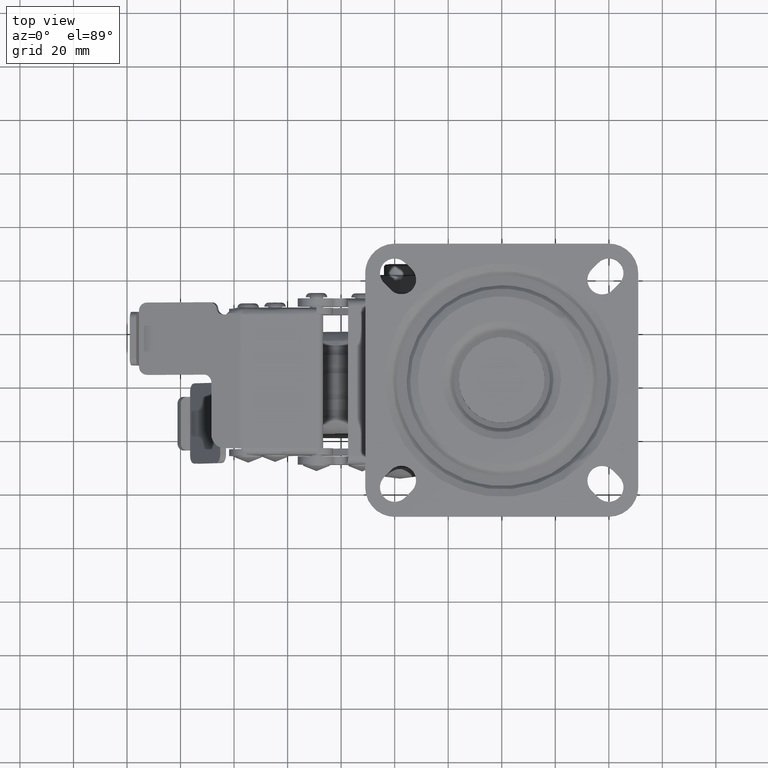
[diagram: clean part render]
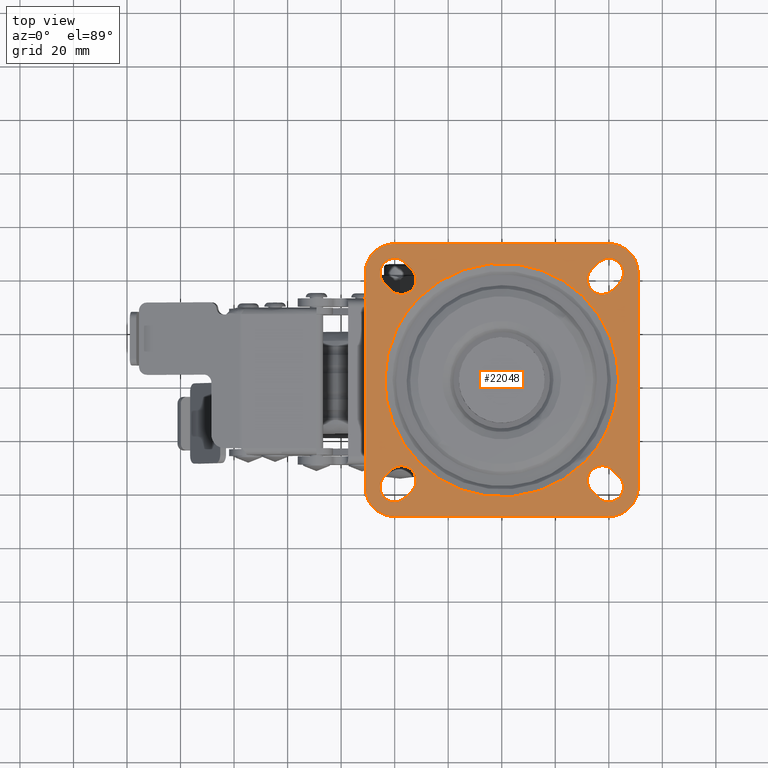
[diagram: same view with one face highlighted and labeled with its STEP entity id]
A machine part, top view. The second image highlights one B-rep face of the part: STEP entity #22048.
In plain terms, the highlighted face is a freeform B-spline surface patch.
Its self-contained STEP definition (entity closure, byte-faithful):
#21577=CARTESIAN_POINT('',(-31.063409349253181,30.675487315989809,-7.218513E-016));
#21578=VERTEX_POINT('',#21577);
#21592=CARTESIAN_POINT('',(-43.656854249492397,0.0,0.0));
#21593=VERTEX_POINT('',#21592);
#21594=CARTESIAN_POINT('',(-43.656854249492397,0.0,0.0));
#21595=CARTESIAN_POINT('',(-43.656854247501144,17.922785791165079,-3.609256E-016));
#21596=CARTESIAN_POINT('',(-31.063409349253178,30.675487315989812,-7.218513E-016));
#21604=(BOUNDED_CURVE()B_SPLINE_CURVE(2,(#21594,#21595,#21596),.UNSPECIFIED.,.F.,.U.)B_SPLINE_CURVE_WITH_KNOTS((3,3),(0.0,0.124051937432048),.UNSPECIFIED.)CURVE()GEOMETRIC_REPRESENTATION_ITEM()RATIONAL_B_SPLINE_CURVE((1.0,0.854664114981930,0.853561814883004))REPRESENTATION_ITEM(''));
#21605=EDGE_CURVE('',#21593,#21578,#21604,.T.);
#21607=CARTESIAN_POINT('',(31.063409349253192,-30.675487315989809,-7.218513E-016));
#21608=VERTEX_POINT('',#21607);
#21609=CARTESIAN_POINT('',(31.063409349253185,-30.675487315989809,-7.218513E-016));
#21610=CARTESIAN_POINT('',(18.244154640137044,-43.656854245896973,-6.599297E-016));
#21611=CARTESIAN_POINT('',(-2.808738E-009,-43.656854246718723,-5.090992E-016));
#21612=CARTESIAN_POINT('',(-43.656854250309891,-43.656854248685129,-1.481736E-016));
#21613=CARTESIAN_POINT('',(-43.656854249492397,0.0,0.0));
#21621=(BOUNDED_CURVE()B_SPLINE_CURVE(2,(#21609,#21610,#21611,#21612,#21613),.UNSPECIFIED.,.F.,.U.)B_SPLINE_CURVE_WITH_KNOTS((3,2,3),(0.624051937432048,0.750000000000000,1.0),.UNSPECIFIED.)CURVE()GEOMETRIC_REPRESENTATION_ITEM()RATIONAL_B_SPLINE_CURVE((0.853561814883003,0.852442666204618,1.0,0.707106781186547,1.0))REPRESENTATION_ITEM(''));
#21622=EDGE_CURVE('',#21608,#21593,#21621,.T.);
#21671=CARTESIAN_POINT('',(43.656854249492397,0.0,0.0));
#21672=VERTEX_POINT('',#21671);
#21673=CARTESIAN_POINT('',(43.656854249492397,0.0,0.0));
#21674=CARTESIAN_POINT('',(43.656854247501144,-17.922785791165069,-3.609256E-016));
#21675=CARTESIAN_POINT('',(31.063409349253185,-30.675487315989809,-7.218513E-016));
#21683=(BOUNDED_CURVE()B_SPLINE_CURVE(2,(#21673,#21674,#21675),.UNSPECIFIED.,.F.,.U.)B_SPLINE_CURVE_WITH_KNOTS((3,3),(0.500000000000000,0.624051937432048),.UNSPECIFIED.)CURVE()GEOMETRIC_REPRESENTATION_ITEM()RATIONAL_B_SPLINE_CURVE((1.0,0.854664114981930,0.853561814883003))REPRESENTATION_ITEM(''));
#21684=EDGE_CURVE('',#21672,#21608,#21683,.T.);
#21686=CARTESIAN_POINT('',(-31.063409349253178,30.675487315989812,-7.218513E-016));
#21687=CARTESIAN_POINT('',(-18.244154640137040,43.656854245896973,-6.599297E-016));
#21688=CARTESIAN_POINT('',(2.808743E-009,43.656854246718730,-5.090992E-016));
#21689=CARTESIAN_POINT('',(43.656854250309891,43.656854248685129,-1.481736E-016));
#21690=CARTESIAN_POINT('',(43.656854249492397,0.0,0.0));
#21698=(BOUNDED_CURVE()B_SPLINE_CURVE(2,(#21686,#21687,#21688,#21689,#21690),.UNSPECIFIED.,.F.,.U.)B_SPLINE_CURVE_WITH_KNOTS((3,2,3),(0.124051937432048,0.250000000000000,0.500000000000000),.UNSPECIFIED.)CURVE()GEOMETRIC_REPRESENTATION_ITEM()RATIONAL_B_SPLINE_CURVE((0.853561814883004,0.852442666204618,1.0,0.707106781186547,1.0))REPRESENTATION_ITEM(''));
#21699=EDGE_CURVE('',#21578,#21672,#21698,.T.);
#21707=CARTESIAN_POINT('',(-56.094879104004477,56.094899802304212,0.0));
#21708=CARTESIAN_POINT('',(56.094885839856367,56.094899802304212,0.0));
#21709=CARTESIAN_POINT('',(-56.094879104004477,-56.094902538157413,0.0));
#21710=CARTESIAN_POINT('',(56.094885839856367,-56.094902538157413,0.0));
#21711=B_SPLINE_SURFACE_WITH_KNOTS('',1,1,((#21707,#21709),(#21708,#21710)),.UNSPECIFIED.,.F.,.F.,.U.,(2,2),(2,2),(0.0,112.189764943860890),(0.0,112.189802340461600),.UNSPECIFIED.);
#21712=CARTESIAN_POINT('',(39.999977896509812,50.999999999997698,0.0));
#21713=VERTEX_POINT('',#21712);
#21714=CARTESIAN_POINT('',(-39.999977544248303,51.0,0.0));
#21715=VERTEX_POINT('',#21714);
#21716=CARTESIAN_POINT('',(39.999977896509812,50.999999999997698,0.0));
#21717=CARTESIAN_POINT('',(-39.999977544248303,51.0,0.0));
#21718=QUASI_UNIFORM_CURVE('',1,(#21716,#21717),.UNSPECIFIED.,.F.,.U.);
#21719=EDGE_CURVE('',#21713,#21715,#21718,.T.);
#21720=ORIENTED_EDGE('',*,*,#21719,.T.);
#21721=CARTESIAN_POINT('',(-50.999980999998101,40.000006911503853,0.0));
#21722=VERTEX_POINT('',#21721);
#21723=CARTESIAN_POINT('',(-39.999977544248303,51.0,0.0));
#21724=CARTESIAN_POINT('',(-50.999974088496387,51.000003455750331,0.0));
#21725=CARTESIAN_POINT('',(-50.999980999998073,40.000006911503853,0.0));
#21733=(BOUNDED_CURVE()B_SPLINE_CURVE(2,(#21723,#21724,#21725),.UNSPECIFIED.,.F.,.U.)CURVE()GEOMETRIC_REPRESENTATION_ITEM()QUASI_UNIFORM_CURVE()RATIONAL_B_SPLINE_CURVE((1.0,0.707106892258612,1.0))REPRESENTATION_ITEM(''));
#21734=EDGE_CURVE('',#21715,#21722,#21733,.T.);
#21735=ORIENTED_EDGE('',*,*,#21734,.T.);
#21736=CARTESIAN_POINT('',(-50.999981000000197,-40.0,0.0));
#21737=VERTEX_POINT('',#21736);
#21738=CARTESIAN_POINT('',(-50.999980999998101,40.000006911503853,0.0));
#21739=CARTESIAN_POINT('',(-50.999981000000197,-40.0,0.0));
#21740=QUASI_UNIFORM_CURVE('',1,(#21738,#21739),.UNSPECIFIED.,.F.,.U.);
#21741=EDGE_CURVE('',#21722,#21737,#21740,.T.);
#21742=ORIENTED_EDGE('',*,*,#21741,.T.);
#21743=CARTESIAN_POINT('',(-39.999977544248303,-51.0,0.0));
#21744=VERTEX_POINT('',#21743);
#21745=CARTESIAN_POINT('',(-50.999981000000197,-40.0,0.0));
#21746=CARTESIAN_POINT('',(-51.000222283097550,-40.899945725324358,0.0));
#21747=CARTESIAN_POINT('',(-50.805575199807890,-42.474718151389602,0.0));
#21748=CARTESIAN_POINT('',(-50.042552149644422,-44.649335092191620,0.0));
#21749=CARTESIAN_POINT('',(-49.109036625719646,-46.250919974150463,0.0));
#21750=CARTESIAN_POINT('',(-47.936464380849742,-47.679713613750863,0.0));
#21751=CARTESIAN_POINT('',(-46.791792951633020,-48.704449546195718,0.0));
#21752=CARTESIAN_POINT('',(-45.324466430768823,-49.671910986149989,0.0));
#21753=CARTESIAN_POINT('',(-43.972564422038140,-50.301209903341771,0.0));
#21754=CARTESIAN_POINT('',(-42.114730341513457,-50.852334019088232,0.0));
#21755=CARTESIAN_POINT('',(-40.854935114498382,-51.000185220972320,0.0));
#21756=CARTESIAN_POINT('',(-39.999977544248303,-51.0,0.0));
#21757=B_SPLINE_CURVE_WITH_KNOTS('',3,(#21745,#21746,#21747,#21748,#21749,#21750,#21751,#21752,#21753,#21754,#21755,#21756),.UNSPECIFIED.,.F.,.U.,(4,1,1,1,1,1,1,1,1,4),(0.000000224836338,2.699790799089776,4.724698061610376,6.884578377203805,8.234497033268264,10.259280324058610,11.474220118097451,13.499127087133481,14.714058011706060,17.278871467454621),.UNSPECIFIED.);
#21758=EDGE_CURVE('',#21737,#21744,#21757,.T.);
#21759=ORIENTED_EDGE('',*,*,#21758,.T.);
#21760=CARTESIAN_POINT('',(39.999984999999803,-51.0,0.0));
#21761=VERTEX_POINT('',#21760);
#21762=CARTESIAN_POINT('',(-39.999977544248303,-51.0,0.0));
#21763=CARTESIAN_POINT('',(39.999984999999803,-51.0,0.0));
#21764=QUASI_UNIFORM_CURVE('',1,(#21762,#21763),.UNSPECIFIED.,.F.,.U.);
#21765=EDGE_CURVE('',#21744,#21761,#21764,.T.);
#21766=ORIENTED_EDGE('',*,*,#21765,.T.);
#21767=CARTESIAN_POINT('',(50.999984999999803,-40.0,0.0));
#21768=VERTEX_POINT('',#21767);
#21769=CARTESIAN_POINT('',(39.999984999999803,-51.000000000000007,0.0));
#21770=CARTESIAN_POINT('',(50.999984999999803,-51.000000000000007,0.0));
#21771=CARTESIAN_POINT('',(50.999984999999803,-40.0,0.0));
#21779=(BOUNDED_CURVE()B_SPLINE_CURVE(2,(#21769,#21770,#21771),.UNSPECIFIED.,.F.,.U.)CURVE()GEOMETRIC_REPRESENTATION_ITEM()QUASI_UNIFORM_CURVE()RATIONAL_B_SPLINE_CURVE((1.0,0.707106781186548,1.0))REPRESENTATION_ITEM(''));
#21780=EDGE_CURVE('',#21761,#21768,#21779,.T.);
#21781=ORIENTED_EDGE('',*,*,#21780,.T.);
#21782=CARTESIAN_POINT('',(50.999984999999803,40.0,0.0));
#21783=VERTEX_POINT('',#21782);
#21784=CARTESIAN_POINT('',(50.999984999999803,-40.0,0.0));
#21785=CARTESIAN_POINT('',(50.999984999999803,40.0,0.0));
#21786=QUASI_UNIFORM_CURVE('',1,(#21784,#21785),.UNSPECIFIED.,.F.,.U.);
#21787=EDGE_CURVE('',#21768,#21783,#21786,.T.);
#21788=ORIENTED_EDGE('',*,*,#21787,.T.);
#21789=CARTESIAN_POINT('',(50.999984999999803,40.0,0.0));
#21790=CARTESIAN_POINT('',(51.000648237628717,41.215006757699797,0.0));
#21791=CARTESIAN_POINT('',(50.691258662750997,43.059388279457757,0.0));
#21792=CARTESIAN_POINT('',(49.757392061581427,45.165005271869369,0.0));
#21793=CARTESIAN_POINT('',(48.840936224159371,46.612288081897312,0.0));
#21794=CARTESIAN_POINT('',(47.454758877050402,48.219918921650567,0.0));
#21795=CARTESIAN_POINT('',(45.438023111143963,49.696496231385893,0.0));
#21796=CARTESIAN_POINT('',(42.789626357614303,50.755314612313917,0.0));
#21797=CARTESIAN_POINT('',(40.989927893486623,51.000340705575447,0.0));
#21798=CARTESIAN_POINT('',(39.999977896509812,50.999999999997698,0.0));
#21799=B_SPLINE_CURVE_WITH_KNOTS('',3,(#21789,#21790,#21791,#21792,#21793,#21794,#21795,#21796,#21797,#21798),.UNSPECIFIED.,.F.,.U.,(4,1,1,1,1,1,1,4),(0.000000224885348,3.644753966738692,5.534648713491839,6.884579830683672,8.774361402920590,11.879204614591190,14.309086279871201,17.278875115261108),.UNSPECIFIED.);
#21800=EDGE_CURVE('',#21783,#21713,#21799,.T.);
#21801=ORIENTED_EDGE('',*,*,#21800,.T.);
#21802=EDGE_LOOP('',(#21720,#21735,#21742,#21759,#21766,#21781,#21788,#21801));
#21803=FACE_OUTER_BOUND('',#21802,.T.);
#21804=CARTESIAN_POINT('',(-33.597049696237399,41.375174696237600,0.0));
#21805=VERTEX_POINT('',#21804);
#21806=CARTESIAN_POINT('',(-36.124825303777712,43.902950303777700,0.0));
#21807=VERTEX_POINT('',#21806);
#21808=CARTESIAN_POINT('',(-33.597049696237399,41.375174696237600,0.0));
#21809=CARTESIAN_POINT('',(-36.124825303777712,43.902950303777700,0.0));
#21810=QUASI_UNIFORM_CURVE('',1,(#21808,#21809),.UNSPECIFIED.,.F.,.U.);
#21811=EDGE_CURVE('',#21805,#21807,#21810,.T.);
#21812=ORIENTED_EDGE('',*,*,#21811,.F.);
#21813=CARTESIAN_POINT('',(-41.389091296521151,33.610916703473400,0.0));
#21814=VERTEX_POINT('',#21813);
#21815=CARTESIAN_POINT('',(-41.389091296521151,33.610916703473400,0.0));
#21816=CARTESIAN_POINT('',(-40.881012083288340,33.101853359468947,0.0));
#21817=CARTESIAN_POINT('',(-39.966456678701419,32.491764457795163,0.0));
#21818=CARTESIAN_POINT('',(-38.583546349464250,32.071767840767542,0.0));
#21819=CARTESIAN_POINT('',(-37.370086710992233,31.951123686344030,0.0));
#21820=CARTESIAN_POINT('',(-36.156448661664427,32.114658983542519,0.0));
#21821=CARTESIAN_POINT('',(-35.102530903386103,32.519819826728337,0.0));
#21822=CARTESIAN_POINT('',(-34.096520689594648,33.120552521888662,0.0));
#21823=CARTESIAN_POINT('',(-33.239585271481879,33.933451722766378,0.0));
#21824=CARTESIAN_POINT('',(-32.609601120048417,34.924362505454170,0.0));
#21825=CARTESIAN_POINT('',(-32.228077507574582,35.839519042625653,0.0));
#21826=CARTESIAN_POINT('',(-31.977852431651119,36.940581000396762,0.0));
#21827=CARTESIAN_POINT('',(-31.989629309521391,38.165117578244100,0.0));
#21828=CARTESIAN_POINT('',(-32.304140702884283,39.436596430264082,0.0));
#21829=CARTESIAN_POINT('',(-32.830175435149329,40.489901814828983,0.0));
#21830=CARTESIAN_POINT('',(-33.343711653154052,41.120068837926141,0.0));
#21831=CARTESIAN_POINT('',(-33.597049696237399,41.375174696237600,0.0));
#21832=B_SPLINE_CURVE_WITH_KNOTS('',3,(#21815,#21816,#21817,#21818,#21819,#21820,#21821,#21822,#21823,#21824,#21825,#21826,#21827,#21828,#21829,#21830,#21831),.UNSPECIFIED.,.F.,.U.,(4,1,1,1,1,1,1,1,1,1,1,1,1,1,4),(0.000000833654131,2.157359923557767,3.236147979732124,4.314895291188888,5.798197618687473,6.876941063922464,7.686021063745933,9.303865193162650,10.382603189910901,11.191689396623239,12.270458646412219,13.753747352168380,14.832490360555671,16.180944407251591,17.259557008159529),.UNSPECIFIED.);
#21833=EDGE_CURVE('',#21814,#21805,#21832,.T.);
#21834=ORIENTED_EDGE('',*,*,#21833,.F.);
#21835=CARTESIAN_POINT('',(-43.889092183694203,36.110917590648299,0.0));
#21836=VERTEX_POINT('',#21835);
#21837=CARTESIAN_POINT('',(-43.889092183694203,36.110917590648299,0.0));
#21838=CARTESIAN_POINT('',(-41.389091296521151,33.610916703473400,0.0));
#21839=QUASI_UNIFORM_CURVE('',1,(#21837,#21838),.UNSPECIFIED.,.F.,.U.);
#21840=EDGE_CURVE('',#21836,#21814,#21839,.T.);
#21841=ORIENTED_EDGE('',*,*,#21840,.F.);
#21842=CARTESIAN_POINT('',(-36.124825303777712,43.902950303777700,0.0));
#21843=CARTESIAN_POINT('',(-36.443690878201849,44.219655869245393,0.0));
#21844=CARTESIAN_POINT('',(-37.231202272957688,44.829929156837650,0.0));
#21845=CARTESIAN_POINT('',(-38.492012503903112,45.347611916965207,0.0));
#21846=CARTESIAN_POINT('',(-39.698824073133977,45.522900783785722,0.0));
#21847=CARTESIAN_POINT('',(-40.735606435209782,45.481993439761418,0.0));
#21848=CARTESIAN_POINT('',(-41.748578731831010,45.251953764299593,0.0));
#21849=CARTESIAN_POINT('',(-42.738530636592117,44.810506123178961,0.0));
#21850=CARTESIAN_POINT('',(-43.623410065461741,44.184645819731500,0.0));
#21851=CARTESIAN_POINT('',(-44.369366867804636,43.398385664802767,0.0));
#21852=CARTESIAN_POINT('',(-44.947798422380757,42.481804375463717,0.0));
#21853=CARTESIAN_POINT('',(-45.401644470492009,41.301403044569753,0.0));
#21854=CARTESIAN_POINT('',(-45.561503503790092,39.993554134116387,0.0));
#21855=CARTESIAN_POINT('',(-45.383896368138473,38.694195330792340,0.0));
#21856=CARTESIAN_POINT('',(-44.911636707664002,37.376190686496159,0.0));
#21857=CARTESIAN_POINT('',(-44.334386623203002,36.555573090661802,0.0));
#21858=CARTESIAN_POINT('',(-43.889092183694203,36.110917590648299,0.0));
#21859=B_SPLINE_CURVE_WITH_KNOTS('',3,(#21842,#21843,#21844,#21845,#21846,#21847,#21848,#21849,#21850,#21851,#21852,#21853,#21854,#21855,#21856,#21857,#21858),.UNSPECIFIED.,.F.,.U.,(4,1,1,1,1,1,1,1,1,1,1,1,1,1,4),(0.000000833674289,1.348309929754549,2.966445828196024,4.045207959858201,4.989121430203648,6.067879107188098,7.146627150325449,8.225366673103656,9.303858417873009,10.382595628962729,11.461383189221269,13.079507136625690,14.293113033837519,15.371848893313899,17.259544438839871),.UNSPECIFIED.);
#21860=EDGE_CURVE('',#21807,#21836,#21859,.T.);
#21861=ORIENTED_EDGE('',*,*,#21860,.F.);
#21862=EDGE_LOOP('',(#21812,#21834,#21841,#21861));
#21863=FACE_BOUND('',#21862,.T.);
#21864=CARTESIAN_POINT('',(36.110900999999799,-43.889082000000052,0.0));
#21865=VERTEX_POINT('',#21864);
#21866=CARTESIAN_POINT('',(43.899431855316500,-36.121284851172902,0.0));
#21867=VERTEX_POINT('',#21866);
#21868=CARTESIAN_POINT('',(36.110900999999799,-43.889082000000052,0.0));
#21869=CARTESIAN_POINT('',(36.365183695854469,-44.143409375344142,0.0));
#21870=CARTESIAN_POINT('',(36.993705441940747,-44.659304591637067,0.0));
#21871=CARTESIAN_POINT('',(38.207280195131439,-45.270845123756082,0.0));
#21872=CARTESIAN_POINT('',(39.588984224604062,-45.546385896674408,0.0));
#21873=CARTESIAN_POINT('',(40.808092061369322,-45.472131296245678,0.0));
#21874=CARTESIAN_POINT('',(41.814114636601772,-45.221065191556640,0.0));
#21875=CARTESIAN_POINT('',(42.805795440274707,-44.782762159117517,0.0));
#21876=CARTESIAN_POINT('',(43.752563644063009,-44.082383952252492,0.0));
#21877=CARTESIAN_POINT('',(44.461756998051953,-43.262362423196343,0.0));
#21878=CARTESIAN_POINT('',(44.972959763837032,-42.412523452994542,0.0));
#21879=CARTESIAN_POINT('',(45.299576349005832,-41.570085834272803,0.0));
#21880=CARTESIAN_POINT('',(45.494827084267477,-40.597678498249522,0.0));
#21881=CARTESIAN_POINT('',(45.524926212184077,-39.468647608419637,0.0));
#21882=CARTESIAN_POINT('',(45.273837604754547,-38.269680300480729,0.0));
#21883=CARTESIAN_POINT('',(44.716356805647187,-37.084103482293607,0.0));
#21884=CARTESIAN_POINT('',(44.216554685901599,-36.439937494415183,0.0));
#21885=CARTESIAN_POINT('',(43.899431855316500,-36.121284851172902,0.0));
#21886=B_SPLINE_CURVE_WITH_KNOTS('',3,(#21868,#21869,#21870,#21871,#21872,#21873,#21874,#21875,#21876,#21877,#21878,#21879,#21880,#21881,#21882,#21883,#21884,#21885),.UNSPECIFIED.,.F.,.U.,(4,1,1,1,1,1,1,1,1,1,1,1,1,1,1,4),(0.000000835150178,1.078954720710598,2.427752097211130,4.046378912638533,5.260336634813093,6.069635563945541,7.148695849053567,8.497448488899186,9.576305938086636,10.385600954814590,11.464700798025831,12.274001594235401,13.353063624251350,14.836773036444059,15.915840433762099,17.264540487672441),.UNSPECIFIED.);
#21887=EDGE_CURVE('',#21865,#21867,#21886,.T.);
#21888=ORIENTED_EDGE('',*,*,#21887,.F.);
#21889=CARTESIAN_POINT('',(33.610898926999553,-41.389078926999453,0.0));
#21890=VERTEX_POINT('',#21889);
#21891=CARTESIAN_POINT('',(36.110900999999799,-43.889082000000052,0.0));
#21892=CARTESIAN_POINT('',(33.610898926999553,-41.389078926999453,0.0));
#21893=QUASI_UNIFORM_CURVE('',1,(#21891,#21892),.UNSPECIFIED.,.F.,.U.);
#21894=EDGE_CURVE('',#21865,#21890,#21893,.T.);
#21895=ORIENTED_EDGE('',*,*,#21894,.T.);
#21896=CARTESIAN_POINT('',(41.378527047411552,-33.600381051628602,0.0));
#21897=VERTEX_POINT('',#21896);
#21898=CARTESIAN_POINT('',(41.378527047411552,-33.600381051628602,0.0));
#21899=CARTESIAN_POINT('',(40.868996375904622,-33.092446907898193,0.0));
#21900=CARTESIAN_POINT('',(39.952367153560459,-32.484964443952272,0.0));
#21901=CARTESIAN_POINT('',(38.481440251623802,-32.042506140334282,0.0));
#21902=CARTESIAN_POINT('',(37.351899253489087,-31.961573145281079,0.0));
#21903=CARTESIAN_POINT('',(36.234339179488842,-32.115644167740861,0.0));
#21904=CARTESIAN_POINT('',(35.076673332258032,-32.500043262995938,0.0));
#21905=CARTESIAN_POINT('',(34.002815823185763,-33.182537362616898,0.0));
#21906=CARTESIAN_POINT('',(33.131953563819430,-34.099879610464797,0.0));
#21907=CARTESIAN_POINT('',(32.552980055956347,-35.016468284975822,0.0));
#21908=CARTESIAN_POINT('',(32.196225622960100,-35.944115360437650,0.0));
#21909=CARTESIAN_POINT('',(31.994798104027680,-36.961238909245473,0.0));
#21910=CARTESIAN_POINT('',(31.980444573806601,-38.182486639584432,0.0));
#21911=CARTESIAN_POINT('',(32.389688286505532,-39.813465378149353,0.0));
#21912=CARTESIAN_POINT('',(33.101662758870340,-40.880912896733633,0.0));
#21913=CARTESIAN_POINT('',(33.610898926999553,-41.389078926999453,0.0));
#21914=B_SPLINE_CURVE_WITH_KNOTS('',3,(#21898,#21899,#21900,#21901,#21902,#21903,#21904,#21905,#21906,#21907,#21908,#21909,#21910,#21911,#21912,#21913),.UNSPECIFIED.,.F.,.U.,(4,1,1,1,1,1,1,1,1,1,1,1,1,4),(0.000000835093537,2.157952356813492,3.237036688975483,4.585844309444966,5.530027601422919,6.609067954462043,8.227631700208802,9.306420224614893,10.385454500319900,11.464539125471349,12.273828505082760,13.487758718162400,15.106321332266189,17.264297021974400),.UNSPECIFIED.);
#21915=EDGE_CURVE('',#21897,#21890,#21914,.T.);
#21916=ORIENTED_EDGE('',*,*,#21915,.F.);
#21917=CARTESIAN_POINT('',(41.378527047411552,-33.600381051628602,0.0));
#21918=CARTESIAN_POINT('',(43.899431855316500,-36.121284851172902,0.0));
#21919=QUASI_UNIFORM_CURVE('',1,(#21917,#21918),.UNSPECIFIED.,.F.,.U.);
#21920=EDGE_CURVE('',#21897,#21867,#21919,.T.);
#21921=ORIENTED_EDGE('',*,*,#21920,.T.);
#21922=EDGE_LOOP('',(#21888,#21895,#21916,#21921));
#21923=FACE_BOUND('',#21922,.T.);
#21924=CARTESIAN_POINT('',(-43.889083000000213,-36.110888999999752,0.0));
#21925=VERTEX_POINT('',#21924);
#21926=CARTESIAN_POINT('',(-36.121835741196200,-43.899979741195750,0.0));
#21927=VERTEX_POINT('',#21926);
#21928=CARTESIAN_POINT('',(-43.889083000000213,-36.110888999999752,0.0));
#21929=CARTESIAN_POINT('',(-44.207038310488237,-36.428684607370663,0.0));
#21930=CARTESIAN_POINT('',(-44.764310401074241,-37.142882746965078,0.0));
#21931=CARTESIAN_POINT('',(-45.241985531685422,-38.219312242914242,0.0));
#21932=CARTESIAN_POINT('',(-45.499316723285922,-39.362842272961281,0.0));
#21933=CARTESIAN_POINT('',(-45.527941507620461,-40.494877967986866,0.0));
#21934=CARTESIAN_POINT('',(-45.275989337399537,-41.689899354448087,0.0));
#21935=CARTESIAN_POINT('',(-44.819401129086849,-42.722850666458463,0.0));
#21936=CARTESIAN_POINT('',(-44.196252190293038,-43.609967995733051,0.0));
#21937=CARTESIAN_POINT('',(-43.412177699665008,-44.358608551961943,0.0));
#21938=CARTESIAN_POINT('',(-42.497190064535637,-44.940058200686579,0.0));
#21939=CARTESIAN_POINT('',(-41.317904686869760,-45.397591125884148,0.0));
#21940=CARTESIAN_POINT('',(-39.829811549058718,-45.584396924181412,0.0));
#21941=CARTESIAN_POINT('',(-38.352060137196823,-45.312538135090243,0.0));
#21942=CARTESIAN_POINT('',(-37.084719715589642,-44.716739893653859,0.0));
#21943=CARTESIAN_POINT('',(-36.440529098921189,-44.217032521250168,0.0));
#21944=CARTESIAN_POINT('',(-36.121835741196200,-43.899979741195750,0.0));
#21945=B_SPLINE_CURVE_WITH_KNOTS('',3,(#21928,#21929,#21930,#21931,#21932,#21933,#21934,#21935,#21936,#21937,#21938,#21939,#21940,#21941,#21942,#21943,#21944),.UNSPECIFIED.,.F.,.U.,(4,1,1,1,1,1,1,1,1,1,1,1,1,1,4),(0.000000834915223,1.348639726287782,2.697405092832849,3.506697420953431,4.855461949598729,6.069363201102416,7.148375068859313,8.227378516708377,9.306133867965485,10.385134937906139,11.464186357317960,13.082706129813319,14.836107273676641,15.915126249977829,17.263765781495689),.UNSPECIFIED.);
#21946=EDGE_CURVE('',#21925,#21927,#21945,.T.);
#21947=ORIENTED_EDGE('',*,*,#21946,.F.);
#21948=CARTESIAN_POINT('',(-41.389081000000203,-33.610885999999951,0.0));
#21949=VERTEX_POINT('',#21948);
#21950=CARTESIAN_POINT('',(-43.889083000000213,-36.110888999999752,0.0));
#21951=CARTESIAN_POINT('',(-41.389081000000203,-33.610885999999951,0.0));
#21952=QUASI_UNIFORM_CURVE('',1,(#21950,#21951),.UNSPECIFIED.,.F.,.U.);
#21953=EDGE_CURVE('',#21925,#21949,#21952,.T.);
#21954=ORIENTED_EDGE('',*,*,#21953,.T.);
#21955=CARTESIAN_POINT('',(-33.600020258824699,-41.378164258824199,0.0));
#21956=VERTEX_POINT('',#21955);
#21957=CARTESIAN_POINT('',(-33.600020258824699,-41.378164258824199,0.0));
#21958=CARTESIAN_POINT('',(-33.092138169404848,-40.868600590492072,0.0));
#21959=CARTESIAN_POINT('',(-32.484781943193710,-39.951948154847813,0.0));
#21960=CARTESIAN_POINT('',(-32.016340246164020,-38.394506325089843,0.0));
#21961=CARTESIAN_POINT('',(-31.954379250921509,-37.078064008633049,0.0));
#21962=CARTESIAN_POINT('',(-32.228781792904499,-35.795274499096458,0.0));
#21963=CARTESIAN_POINT('',(-32.688230050464028,-34.763606753072722,0.0));
#21964=CARTESIAN_POINT('',(-33.313862995682221,-33.878234018119826,0.0));
#21965=CARTESIAN_POINT('',(-34.100045546535938,-33.131812419223081,0.0));
#21966=CARTESIAN_POINT('',(-35.169391379804203,-32.456271151376932,0.0));
#21967=CARTESIAN_POINT('',(-36.593816870604542,-31.986958358637931,0.0));
#21968=CARTESIAN_POINT('',(-38.096309386073230,-31.969709391439530,0.0));
#21969=CARTESIAN_POINT('',(-39.366917933414967,-32.288950858991967,0.0));
#21970=CARTESIAN_POINT('',(-40.428500254927577,-32.791397474097387,0.0));
#21971=CARTESIAN_POINT('',(-41.071278348141433,-33.292938637694213,0.0));
#21972=CARTESIAN_POINT('',(-41.389081000000203,-33.610885999999951,0.0));
#21973=B_SPLINE_CURVE_WITH_KNOTS('',3,(#21957,#21958,#21959,#21960,#21961,#21962,#21963,#21964,#21965,#21966,#21967,#21968,#21969,#21970,#21971,#21972),.UNSPECIFIED.,.F.,.U.,(4,1,1,1,1,1,1,1,1,1,1,1,1,4),(0.000000834941002,2.157892014931335,3.236946170005037,4.855475575982327,6.069380234045983,7.148395129718065,8.227401606620816,9.306159983314009,10.385164081558189,12.003744324428521,13.757139854702160,14.836148908948751,15.915170913387570,17.263814229830100),.UNSPECIFIED.);
#21974=EDGE_CURVE('',#21956,#21949,#21973,.T.);
#21975=ORIENTED_EDGE('',*,*,#21974,.F.);
#21976=CARTESIAN_POINT('',(-33.600020258824699,-41.378164258824199,0.0));
#21977=CARTESIAN_POINT('',(-36.121835741196200,-43.899979741195750,0.0));
#21978=QUASI_UNIFORM_CURVE('',1,(#21976,#21977),.UNSPECIFIED.,.F.,.U.);
#21979=EDGE_CURVE('',#21956,#21927,#21978,.T.);
#21980=ORIENTED_EDGE('',*,*,#21979,.T.);
#21981=EDGE_LOOP('',(#21947,#21954,#21975,#21980));
#21982=FACE_BOUND('',#21981,.T.);
#21983=CARTESIAN_POINT('',(43.889087000000004,36.110905000000102,0.0));
#21984=VERTEX_POINT('',#21983);
#21985=CARTESIAN_POINT('',(36.122528926625137,43.900668926625663,0.0));
#21986=VERTEX_POINT('',#21985);
#21987=CARTESIAN_POINT('',(43.889087000000004,36.110905000000102,0.0));
#21988=CARTESIAN_POINT('',(44.143371722270103,36.365171867215622,0.0));
#21989=CARTESIAN_POINT('',(44.716678568049723,37.063395100641870,0.0));
#21990=CARTESIAN_POINT('',(45.261085516698706,38.213351627097573,0.0));
#21991=CARTESIAN_POINT('',(45.552781717006937,39.675388427241337,0.0));
#21992=CARTESIAN_POINT('',(45.472876589250617,40.993131494962071,0.0));
#21993=CARTESIAN_POINT('',(45.006656155799050,42.409183857449086,0.0));
#21994=CARTESIAN_POINT('',(44.327381646704083,43.484919948415254,0.0));
#21995=CARTESIAN_POINT('',(43.412563687941628,44.358287550557577,0.0));
#21996=CARTESIAN_POINT('',(42.497723194932497,44.939842529506777,0.0));
#21997=CARTESIAN_POINT('',(41.571192981135681,45.299232392338368,0.0));
#21998=CARTESIAN_POINT('',(40.598933942772653,45.494711696182172,0.0));
#21999=CARTESIAN_POINT('',(39.650661859697543,45.520107866007109,0.0));
#22000=CARTESIAN_POINT('',(38.625674245070172,45.357656441053678,0.0));
#22001=CARTESIAN_POINT('',(37.391115011313843,44.919609425339218,0.0));
#22002=CARTESIAN_POINT('',(36.568575324433887,44.344739840219383,0.0));
#22003=CARTESIAN_POINT('',(36.122528926625137,43.900668926625663,0.0));
#22004=B_SPLINE_CURVE_WITH_KNOTS('',3,(#21987,#21988,#21989,#21990,#21991,#21992,#21993,#21994,#21995,#21996,#21997,#21998,#21999,#22000,#22001,#22002,#22003),.UNSPECIFIED.,.F.,.U.,(4,1,1,1,1,1,1,1,1,1,1,1,1,1,4),(0.000000834635713,1.078845374938130,2.697252824991308,3.776241022941546,5.529545243142074,6.608491491943866,8.226914027695322,9.305608517846077,10.384548668784481,11.463539169112369,12.272757936093640,13.351710628355940,14.295801750518971,15.374740498138140,17.262791168983149),.UNSPECIFIED.);
#22005=EDGE_CURVE('',#21984,#21986,#22004,.T.);
#22006=ORIENTED_EDGE('',*,*,#22005,.F.);
#22007=CARTESIAN_POINT('',(41.389073999999702,33.610892000000050,0.0));
#22008=VERTEX_POINT('',#22007);
#22009=CARTESIAN_POINT('',(43.889087000000004,36.110905000000102,0.0));
#22010=CARTESIAN_POINT('',(41.389073999999702,33.610892000000050,0.0));
#22011=QUASI_UNIFORM_CURVE('',1,(#22009,#22010),.UNSPECIFIED.,.F.,.U.);
#22012=EDGE_CURVE('',#21984,#22008,#22011,.T.);
#22013=ORIENTED_EDGE('',*,*,#22012,.T.);
#22014=CARTESIAN_POINT('',(33.599331073345603,41.377471073345802,0.0));
#22015=VERTEX_POINT('',#22014);
#22016=CARTESIAN_POINT('',(33.599331073345603,41.377471073345802,0.0));
#22017=CARTESIAN_POINT('',(33.123528403579542,40.899586475868333,0.0));
#22018=CARTESIAN_POINT('',(32.403020363074582,39.841594007810073,0.0));
#22019=CARTESIAN_POINT('',(31.954681809025459,38.123436705800842,0.0));
#22020=CARTESIAN_POINT('',(32.011616669634371,36.672839996518469,0.0));
#22021=CARTESIAN_POINT('',(32.363496045465588,35.410955431135491,0.0));
#22022=CARTESIAN_POINT('',(32.920479722797822,34.373435261530730,0.0));
#22023=CARTESIAN_POINT('',(33.688977027909992,33.485408603458133,0.0));
#22024=CARTESIAN_POINT('',(34.544487270049103,32.819633611502987,0.0));
#22025=CARTESIAN_POINT('',(35.513405767505638,32.333371741732577,0.0));
#22026=CARTESIAN_POINT('',(36.776314407208190,31.984973499706211,0.0));
#22027=CARTESIAN_POINT('',(38.096475595222167,31.969690640607709,0.0));
#22028=CARTESIAN_POINT('',(39.367049420439209,32.289019738451579,0.0));
#22029=CARTESIAN_POINT('',(40.428551635926112,32.791446218558903,0.0));
#22030=CARTESIAN_POINT('',(41.071289953422841,33.292963111288380,0.0));
#22031=CARTESIAN_POINT('',(41.389073999999702,33.610892000000050,0.0));
#22032=B_SPLINE_CURVE_WITH_KNOTS('',3,(#22016,#22017,#22018,#22019,#22020,#22021,#22022,#22023,#22024,#22025,#22026,#22027,#22028,#22029,#22030,#22031),.UNSPECIFIED.,.F.,.U.,(4,1,1,1,1,1,1,1,1,1,1,1,1,4),(0.000000834641796,2.022894431298193,3.776247489540292,5.259812630550419,6.338766600135751,7.687474497153982,8.766234536898558,9.845087304074628,10.924055681023651,12.003053526557300,13.756348153379131,14.835295120982771,15.914255029330340,17.262820730731988),.UNSPECIFIED.);
#22033=EDGE_CURVE('',#22015,#22008,#22032,.T.);
#22034=ORIENTED_EDGE('',*,*,#22033,.F.);
#22035=CARTESIAN_POINT('',(33.599331073345603,41.377471073345802,0.0));
#22036=CARTESIAN_POINT('',(36.122528926625137,43.900668926625663,0.0));
#22037=QUASI_UNIFORM_CURVE('',1,(#22035,#22036),.UNSPECIFIED.,.F.,.U.);
#22038=EDGE_CURVE('',#22015,#21986,#22037,.T.);
#22039=ORIENTED_EDGE('',*,*,#22038,.T.);
#22040=EDGE_LOOP('',(#22006,#22013,#22034,#22039));
#22041=FACE_BOUND('',#22040,.T.);
#22042=ORIENTED_EDGE('',*,*,#21605,.T.);
#22043=ORIENTED_EDGE('',*,*,#21699,.T.);
#22044=ORIENTED_EDGE('',*,*,#21684,.T.);
#22045=ORIENTED_EDGE('',*,*,#21622,.T.);
#22046=EDGE_LOOP('',(#22042,#22043,#22044,#22045));
#22047=FACE_BOUND('',#22046,.T.);
#22048=ADVANCED_FACE('',(#21803,#21863,#21923,#21982,#22041,#22047),#21711,.F.);